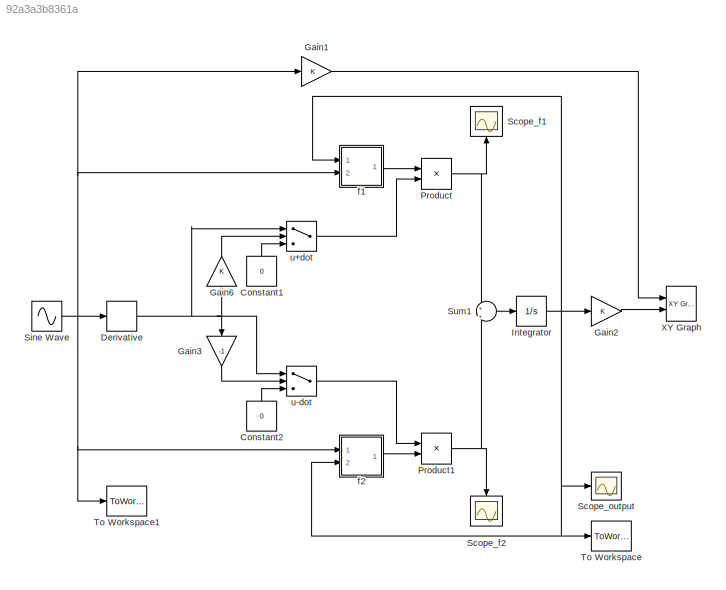
MODEL slx_92a3a3b8361a
KIND model
CONFIG AbsTol = auto
CONFIG EnableMultiTasking = on
CONFIG FixedStep = 1e-6
CONFIG MaxStep = auto
CONFIG MinStep = auto
CONFIG RelTol = 1e-3
CONFIG SampleTimeConstraint = Unconstrained
CONFIG Solver = ode4
CONFIG SolverName = ode4
CONFIG StartTime = 0.0
CONFIG StopTime = 10
BLOCK [Constant] Constant1
  NameLocation = right
  Value = 0
BLOCK [Constant] Constant2
  NameLocation = right
  Value = 0
BLOCK [Derivative] Derivative
BLOCK [Gain] Gain1
BLOCK [Gain] Gain2
BLOCK [Gain] Gain3
  Gain = -1
  NameLocation = left
BLOCK [Gain] Gain6
  NameLocation = right
BLOCK [Integrator] Integrator
  InitialCondition = y0
  Ports = [1, 1]
BLOCK [Product] Product
  Ports = [2, 1]
  RndMeth = Zero
BLOCK [Product] Product1
  Ports = [2, 1]
  RndMeth = Zero
BLOCK [Scope] Scope_f1
  Floating = off
  NameLocation = right
  NumInputPorts = 1
  Ports = [1]
  ScopeSpecificationString = Simulink.scopes.TimeScopeBlockCfg('CurrentConfiguration', extmgr.ConfigurationSet(extmgr.Configuration('Core','General UI',true),extmgr.Configuration('Core','Source UI',true),extmgr.Configuration('Sources','WiredSimulink',true,'DataLoggingVariableName','ScopeData2','DataLoggingSaveFormat','StructureWithTime','DataLoggingDecimation','1','DataLoggingDecimateData',true),extmgr.Configuration('Visuals'...<+1735ch>
BLOCK [Scope] Scope_f2
  Floating = off
  NameLocation = left
  NumInputPorts = 1
  Ports = [1]
  ScopeSpecificationString = Simulink.scopes.TimeScopeBlockCfg('CurrentConfiguration', extmgr.ConfigurationSet(extmgr.Configuration('Core','General UI',true),extmgr.Configuration('Core','Source UI',true),extmgr.Configuration('Sources','WiredSimulink',true,'DataLoggingVariableName','ScopeData3','DataLoggingSaveFormat','StructureWithTime','DataLoggingDecimation','1','DataLoggingDecimateData',true),extmgr.Configuration('Visuals'...<+1706ch>
BLOCK [Scope] Scope_output
  Floating = off
  NumInputPorts = 1
  Ports = [1]
  ScopeSpecificationString = Simulink.scopes.TimeScopeBlockCfg('CurrentConfiguration', extmgr.ConfigurationSet(extmgr.Configuration('Core','General UI',true),extmgr.Configuration('Core','Source UI',true),extmgr.Configuration('Sources','WiredSimulink',true,'DataLoggingVariableName','ScopeData3','DataLoggingSaveFormat','StructureWithTime','DataLoggingDecimation','1','DataLoggingDecimateData',true),extmgr.Configuration('Visuals'...<+1724ch>
BLOCK [Sin] Sine Wave
  Amplitude = amp
  Bias = bias
  Frequency = freq
  Phase = phase
  Ports = [0, 1]
  SampleTime = 0
BLOCK [Sum] Sum1
  Inputs = +|+
  Ports = [2, 1]
BLOCK [ToWorkspace] To Workspace
  FixptAsFi = on
  MaxDataPoints = inf
  Ports = [1]
  SampleTime = -1
  SaveFormat = Timeseries
  VariableName = output
BLOCK [ToWorkspace] To Workspace1
  FixptAsFi = on
  MaxDataPoints = inf
  Ports = [1]
  SampleTime = -1
  SaveFormat = Timeseries
  VariableName = input
BLOCK [Reference] XY Graph  REF=simulink/Sinks/XY Graph
  Ports = [2]
  SourceBlock = simulink/Sinks/XY Graph
  SourceProductBaseCode = SL
  SourceType = XY scope.
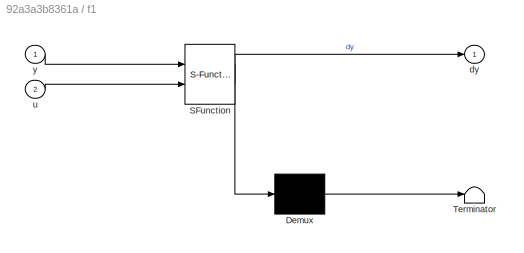
BLOCK [SubSystem] f1
  ErrorFcn = Stateflow.Translate.translate
  PermitHierarchicalResolution = ExplicitOnly
  Ports = [2, 1]
  RequestExecContextInheritance = off
  SFBlockType = MATLAB Function
  TreatAsAtomicUnit = on
BLOCK [Demux] f1/ Demux 
  Outputs = 1
  Ports = [1, 1]
BLOCK [S-Function] f1/ SFunction 
  EnableBusSupport = on
  FunctionName = sf_sfun
  Parameters = curve1,curve2
  PortCounts = [2 2]
  Ports = [2, 2]
  SFcnIsStateOwnerBlock = off
  SFunctionDeploymentMode = off
  Tag = Stateflow S-Function 3
BLOCK [Terminator] f1/ Terminator 
BLOCK [Outport] f1/dy
BLOCK [Inport] f1/u
  Port = 2
BLOCK [Inport] f1/y
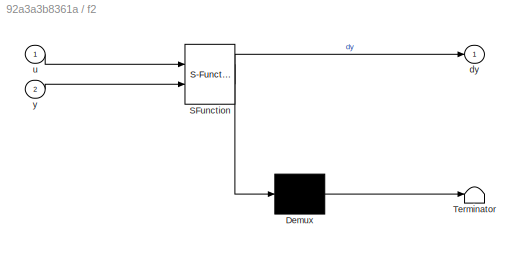
BLOCK [SubSystem] f2
  ErrorFcn = Stateflow.Translate.translate
  PermitHierarchicalResolution = ExplicitOnly
  Ports = [2, 1]
  RequestExecContextInheritance = off
  SFBlockType = MATLAB Function
  TreatAsAtomicUnit = on
BLOCK [Demux] f2/ Demux 
  Outputs = 1
  Ports = [1, 1]
BLOCK [S-Function] f2/ SFunction 
  EnableBusSupport = on
  FunctionName = sf_sfun
  Parameters = curve1,curve2
  PortCounts = [2 2]
  Ports = [2, 2]
  SFcnIsStateOwnerBlock = off
  SFunctionDeploymentMode = off
  Tag = Stateflow S-Function 2
BLOCK [Terminator] f2/ Terminator 
BLOCK [Outport] f2/dy
BLOCK [Inport] f2/u
BLOCK [Inport] f2/y
  Port = 2
BLOCK [Switch] u+dot
  InputSameDT = off
  SaturateOnIntegerOverflow = off
BLOCK [Switch] u-dot
  Criteria = u2 > Threshold
  InputSameDT = off
  SaturateOnIntegerOverflow = off
LINE Constant1:1 -> u+dot:3
LINE Constant2:1 -> u-dot:3
NET Derivative:1 -> Gain3:1, Gain6:1, u+dot:1, u-dot:1
LINE Gain1:1 -> XY Graph:1
LINE Gain2:1 -> XY Graph:2
LINE Gain3:1 -> u-dot:2
LINE Gain6:1 -> u+dot:2
NET Integrator:1 -> Gain2:1, Scope_output:1, To Workspace:1, f1:1, f2:2
NET Product1:1 -> Scope_f2:1, Sum1:2
NET Product:1 -> Scope_f1:1, Sum1:1
NET Sine Wave:1 -> Derivative:1, Gain1:1, To Workspace1:1, f1:2, f2:1
LINE Sum1:1 -> Integrator:1
LINE f1:1 -> Product:1
LINE f2:1 -> Product1:2
LINE u+dot:1 -> Product:2
LINE u-dot:1 -> Product1:1
note: NET lines group one-source signal fan-out (src -> all destinations, sorted); 1:1 wires keep LINE
CHART f2 states=1 transitions=1
  STATE_LABEL 'eML_blk_kernel()'
  STATE_LABEL 'SCRIPT:\nfunction dy = f2(u,y,curve1,curve2)\n\npoint=[u,y];\n\n%% Harcoded values\n% scale = 2.0;\n% if(ButterflyUtils.verticalDistance(point,curveAnhys)<=0)\n%     if(ButterflyUtils.horizonalDistance(point,curve2)>0)\n%         dy = 1.0*scale;\n%     elseif(ButterflyUtils.horizonalDistance(point,curve1)>=0)\n%         dy = -1.0*scale;\n%     else\n%         dy = -2.0*scale;\n%     end\n% else\n%     if(Butterfl...<+644ch>'
CHART f1 states=1 transitions=1
  STATE_LABEL 'eML_blk_kernel()'
  STATE_LABEL 'SCRIPT:\nfunction dy = f1(y,u,curve1,curve2)\n\npoint=[u,y];\n\n%% Harcoded values\n% scale = 2.0;\n% if(ButterflyUtils.verticalDistance(point,curveAnhys)<=0)\n%     if(ButterflyUtils.horizonalDistance(point,curve2)>0)\n%         dy = 2.0*scale;\n%     elseif(ButterflyUtils.horizonalDistance(point,curve1)>=0)\n%         dy = 1.0*scale;\n%     else\n%         dy = -1.0*scale;\n%     end\n% else\n%     if(Butterfly...<+646ch>'
CHART  states=0 transitions=0
CHART  states=0 transitions=0
